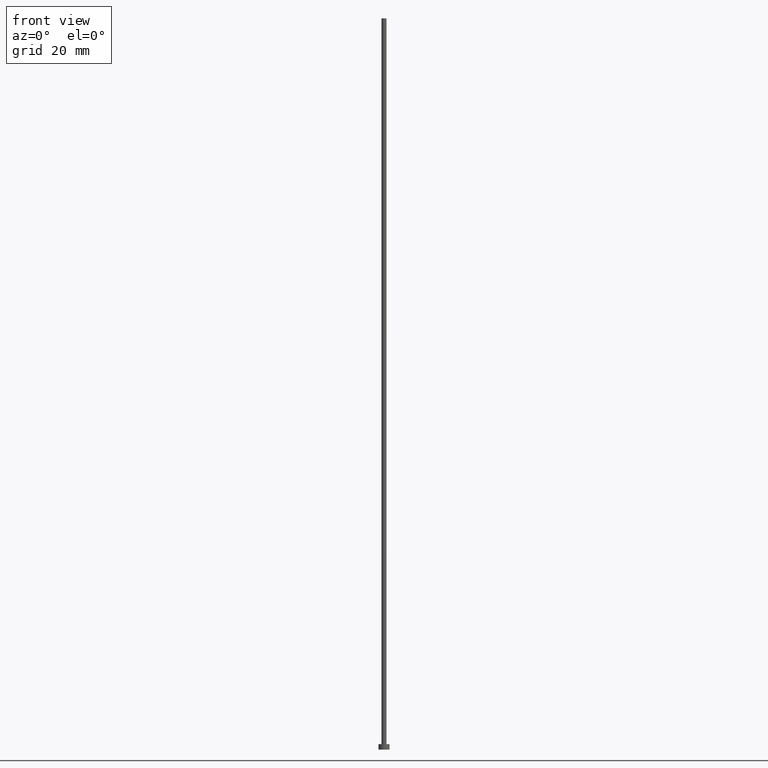
[diagram: clean part render]
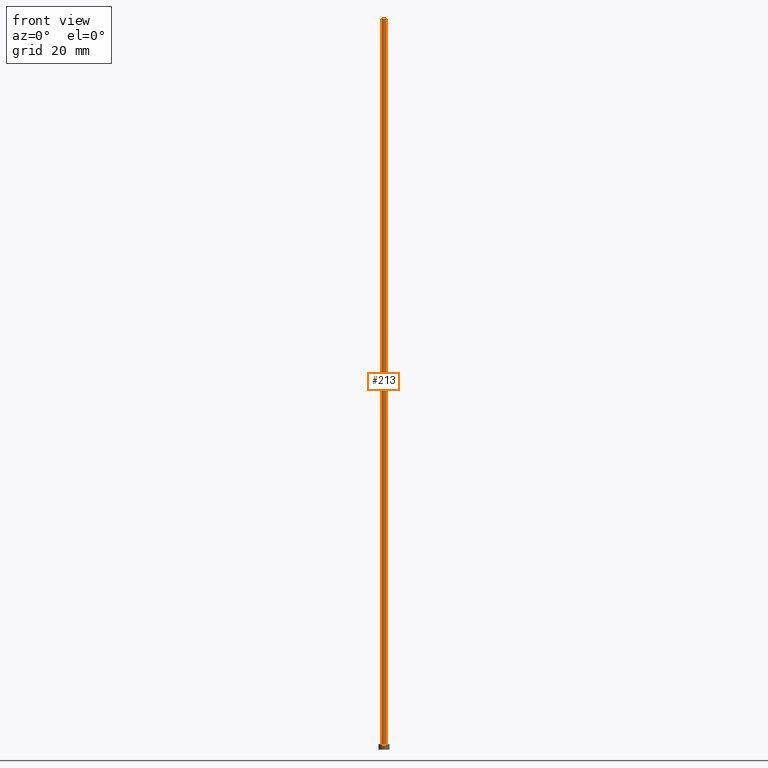
[diagram: same view with one face highlighted and labeled with its STEP entity id]
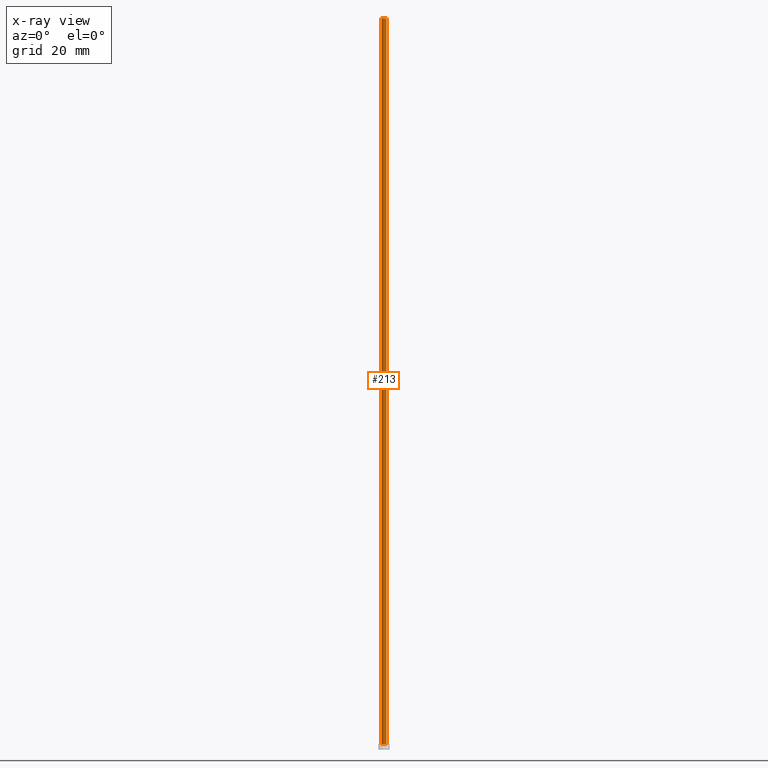
[diagram: x-ray of the same camera — body ghosted, the highlighted face saturated]
A machine part, front view. The second image highlights one B-rep face of the part: STEP entity #213.
The next image is the same camera in x-ray: the body ghosted, the highlighted face saturated — about 0% of this face is hidden behind the body in this view.
In plain terms, the highlighted cylindrical surface (edge-blend (fillet) strip) has radius 0.7 mm, axis along (-0, -0, -1).
Its self-contained STEP definition (entity closure, byte-faithful):
#1 = VERTEX_POINT ( 'NONE', #242 ) ;
#16 = ORIENTED_EDGE ( 'NONE', *, *, #153, .F. ) ;
#18 = ORIENTED_EDGE ( 'NONE', *, *, #205, .T. ) ;
#22 = DIRECTION ( 'NONE',  ( -0.000000000000000000, -0.000000000000000000, -1.000000000000000000 ) ) ;
#30 = CIRCLE ( 'NONE', #72, 0.6999999999999999556 ) ;
#39 = LINE ( 'NONE', #180, #210 ) ;
#45 = AXIS2_PLACEMENT_3D ( 'NONE', #76, #198, #144 ) ;
#57 = EDGE_LOOP ( 'NONE', ( #70, #16, #193, #18 ) ) ;
#70 = ORIENTED_EDGE ( 'NONE', *, *, #222, .F. ) ;
#72 = AXIS2_PLACEMENT_3D ( 'NONE', #161, #121, #232 ) ;
#76 = CARTESIAN_POINT ( 'NONE',  ( 0.000000000000000000, 0.000000000000000000, 200.0000000000000000 ) ) ;
#121 = DIRECTION ( 'NONE',  ( 0.000000000000000000, 0.000000000000000000, 1.000000000000000000 ) ) ;
#139 = DIRECTION ( 'NONE',  ( -0.000000000000000000, -0.000000000000000000, -1.000000000000000000 ) ) ;
#142 = DIRECTION ( 'NONE',  ( -1.000000000000000000, 0.000000000000000000, 0.000000000000000000 ) ) ;
#144 = DIRECTION ( 'NONE',  ( 1.000000000000000000, 0.000000000000000000, 0.000000000000000000 ) ) ;
#151 = VERTEX_POINT ( 'NONE', #159 ) ;
#153 = EDGE_CURVE ( 'NONE', #151, #1, #248, .T. ) ;
#157 = CARTESIAN_POINT ( 'NONE',  ( 0.6999999999999999556, 8.572527594031471957E-17, 200.0000000000000000 ) ) ;
#159 = CARTESIAN_POINT ( 'NONE',  ( -0.6999999999999999556, 0.000000000000000000, 200.0000000000000000 ) ) ;
#161 = CARTESIAN_POINT ( 'NONE',  ( 0.000000000000000000, 0.000000000000000000, 1.500000000000000000 ) ) ;
#163 = LINE ( 'NONE', #157, #247 ) ;
#174 = AXIS2_PLACEMENT_3D ( 'NONE', #197, #22, #142 ) ;
#176 = CARTESIAN_POINT ( 'NONE',  ( 0.6999999999999999556, 8.572527594031471957E-17, 1.500000000000000000 ) ) ;
#180 = CARTESIAN_POINT ( 'NONE',  ( -0.6999999999999999556, 0.000000000000000000, 200.0000000000000000 ) ) ;
#187 = VERTEX_POINT ( 'NONE', #176 ) ;
#193 = ORIENTED_EDGE ( 'NONE', *, *, #253, .T. ) ;
#195 = CYLINDRICAL_SURFACE ( 'NONE', #174, 0.6999999999999999556 ) ;
#197 = CARTESIAN_POINT ( 'NONE',  ( 0.000000000000000000, 0.000000000000000000, 200.0000000000000000 ) ) ;
#198 = DIRECTION ( 'NONE',  ( 0.000000000000000000, 0.000000000000000000, 1.000000000000000000 ) ) ;
#205 = EDGE_CURVE ( 'NONE', #244, #187, #30, .T. ) ;
#210 = VECTOR ( 'NONE', #215, 1000.000000000000000 ) ;
#213 = ADVANCED_FACE ( 'NONE', ( #249 ), #195, .T. ) ;
#215 = DIRECTION ( 'NONE',  ( -0.000000000000000000, -0.000000000000000000, -1.000000000000000000 ) ) ;
#222 = EDGE_CURVE ( 'NONE', #1, #187, #163, .T. ) ;
#232 = DIRECTION ( 'NONE',  ( 1.000000000000000000, 0.000000000000000000, 0.000000000000000000 ) ) ;
#242 = CARTESIAN_POINT ( 'NONE',  ( 0.6999999999999999556, 8.572527594031471957E-17, 200.0000000000000000 ) ) ;
#244 = VERTEX_POINT ( 'NONE', #252 ) ;
#247 = VECTOR ( 'NONE', #139, 1000.000000000000000 ) ;
#248 = CIRCLE ( 'NONE', #45, 0.6999999999999999556 ) ;
#249 = FACE_OUTER_BOUND ( 'NONE', #57, .T. ) ;
#252 = CARTESIAN_POINT ( 'NONE',  ( -0.6999999999999999556, 0.000000000000000000, 1.500000000000000000 ) ) ;
#253 = EDGE_CURVE ( 'NONE', #151, #244, #39, .T. ) ;